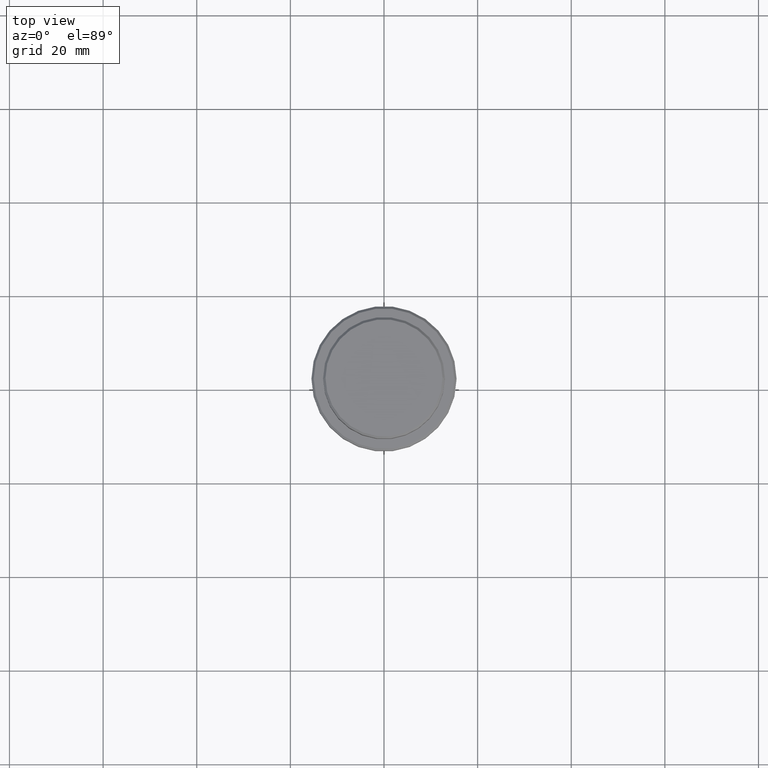
[diagram: clean part render]
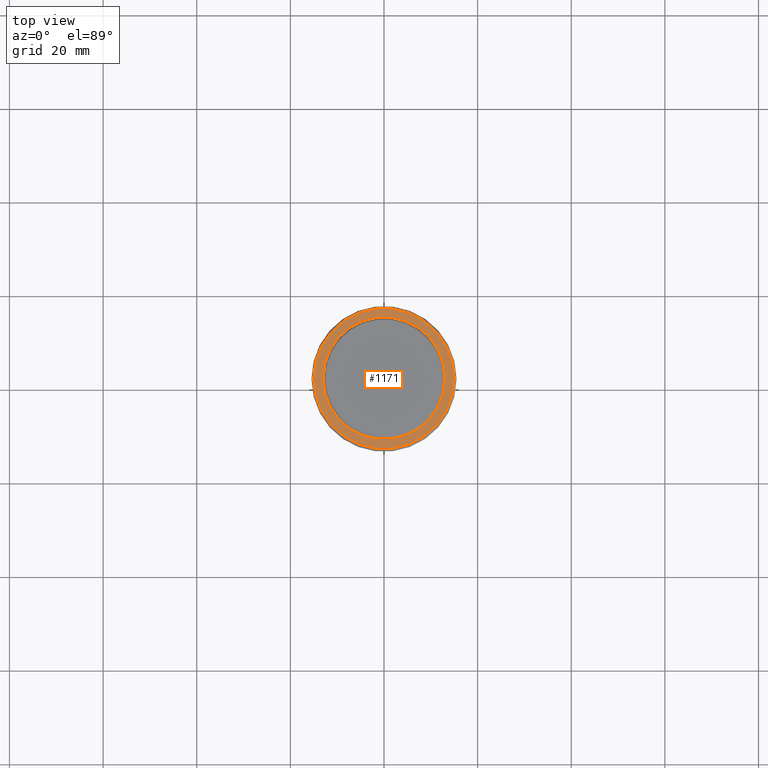
[diagram: same view with one face highlighted and labeled with its STEP entity id]
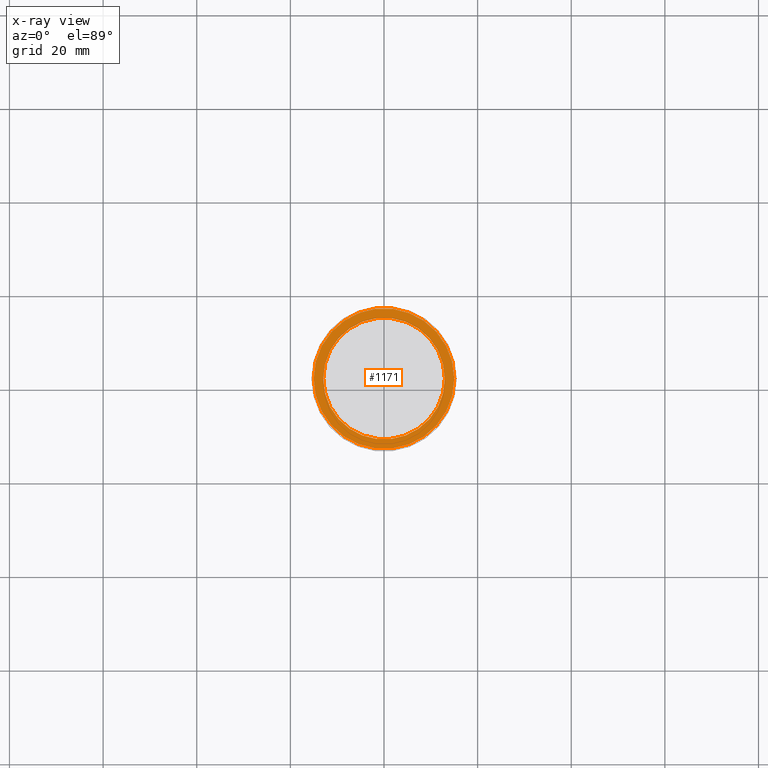
[diagram: x-ray of the same camera — body ghosted, the highlighted face saturated]
A machine part, top view. The second image highlights one B-rep face of the part: STEP entity #1171.
The next image is the same camera in x-ray: the body ghosted, the highlighted face saturated — about 0% of this face is hidden behind the body in this view.
In plain terms, the highlighted planar face has unit normal (0, -0, 1).
Its self-contained STEP definition (entity closure, byte-faithful):
#38 = DIRECTION ( 'NONE',  ( 0.000000000000000000, 0.000000000000000000, -1.000000000000000000 ) ) ;
#82 = VERTEX_POINT ( 'NONE', #361 ) ;
#115 = EDGE_CURVE ( 'NONE', #1262, #1033, #141, .T. ) ;
#116 = CARTESIAN_POINT ( 'NONE',  ( 0.000000000000000000, 0.000000000000000000, -9.000000000000000000 ) ) ;
#124 = DIRECTION ( 'NONE',  ( -0.000000000000000000, -0.000000000000000000, 1.000000000000000000 ) ) ;
#132 = EDGE_LOOP ( 'NONE', ( #476, #626 ) ) ;
#141 = CIRCLE ( 'NONE', #616, 12.99999999999999467 ) ;
#144 = AXIS2_PLACEMENT_3D ( 'NONE', #452, #1105, #680 ) ;
#222 = EDGE_CURVE ( 'NONE', #1033, #1262, #1287, .T. ) ;
#230 = CIRCLE ( 'NONE', #1348, 14.99999999999997158 ) ;
#336 = DIRECTION ( 'NONE',  ( 1.000000000000000000, 0.000000000000000000, 0.000000000000000000 ) ) ;
#361 = CARTESIAN_POINT ( 'NONE',  ( -14.99999999999997158, 0.000000000000000000, -9.000000000000000000 ) ) ;
#384 = FACE_BOUND ( 'NONE', #132, .T. ) ;
#399 = DIRECTION ( 'NONE',  ( 0.000000000000000000, -0.000000000000000000, 1.000000000000000000 ) ) ;
#403 = EDGE_CURVE ( 'NONE', #1249, #82, #1266, .T. ) ;
#418 = ORIENTED_EDGE ( 'NONE', *, *, #403, .T. ) ;
#452 = CARTESIAN_POINT ( 'NONE',  ( 0.000000000000000000, 0.000000000000000000, -9.000000000000000000 ) ) ;
#453 = CARTESIAN_POINT ( 'NONE',  ( 0.000000000000000000, 0.000000000000000000, -9.000000000000000000 ) ) ;
#460 = EDGE_CURVE ( 'NONE', #82, #1249, #230, .T. ) ;
#476 = ORIENTED_EDGE ( 'NONE', *, *, #222, .T. ) ;
#501 = PLANE ( 'NONE',  #1351 ) ;
#564 = CARTESIAN_POINT ( 'NONE',  ( 12.99999999999999467, 0.000000000000000000, -9.000000000000000000 ) ) ;
#585 = FACE_OUTER_BOUND ( 'NONE', #911, .T. ) ;
#616 = AXIS2_PLACEMENT_3D ( 'NONE', #453, #1311, #336 ) ;
#626 = ORIENTED_EDGE ( 'NONE', *, *, #115, .T. ) ;
#637 = ORIENTED_EDGE ( 'NONE', *, *, #460, .T. ) ;
#663 = AXIS2_PLACEMENT_3D ( 'NONE', #1025, #38, #833 ) ;
#680 = DIRECTION ( 'NONE',  ( 1.000000000000000000, 0.000000000000000000, 0.000000000000000000 ) ) ;
#700 = DIRECTION ( 'NONE',  ( 1.000000000000000000, 0.000000000000000000, 0.000000000000000000 ) ) ;
#707 = CARTESIAN_POINT ( 'NONE',  ( 0.000000000000000000, 12.49999999999999289, -9.000000000000000000 ) ) ;
#771 = CARTESIAN_POINT ( 'NONE',  ( -12.99999999999999467, 1.592040838891558504E-15, -9.000000000000000000 ) ) ;
#796 = DIRECTION ( 'NONE',  ( 1.000000000000000000, 0.000000000000000000, 0.000000000000000000 ) ) ;
#833 = DIRECTION ( 'NONE',  ( 1.000000000000000000, 0.000000000000000000, 0.000000000000000000 ) ) ;
#911 = EDGE_LOOP ( 'NONE', ( #637, #418 ) ) ;
#1025 = CARTESIAN_POINT ( 'NONE',  ( 0.000000000000000000, 0.000000000000000000, -9.000000000000000000 ) ) ;
#1033 = VERTEX_POINT ( 'NONE', #564 ) ;
#1105 = DIRECTION ( 'NONE',  ( -0.000000000000000000, -0.000000000000000000, 1.000000000000000000 ) ) ;
#1171 = ADVANCED_FACE ( 'NONE', ( #585, #384 ), #501, .T. ) ;
#1249 = VERTEX_POINT ( 'NONE', #1394 ) ;
#1262 = VERTEX_POINT ( 'NONE', #771 ) ;
#1266 = CIRCLE ( 'NONE', #144, 14.99999999999997158 ) ;
#1287 = CIRCLE ( 'NONE', #663, 12.99999999999999467 ) ;
#1311 = DIRECTION ( 'NONE',  ( 0.000000000000000000, 0.000000000000000000, -1.000000000000000000 ) ) ;
#1348 = AXIS2_PLACEMENT_3D ( 'NONE', #116, #124, #796 ) ;
#1351 = AXIS2_PLACEMENT_3D ( 'NONE', #707, #399, #700 ) ;
#1394 = CARTESIAN_POINT ( 'NONE',  ( 14.99999999999997158, 1.867586368699711798E-15, -9.000000000000000000 ) ) ;